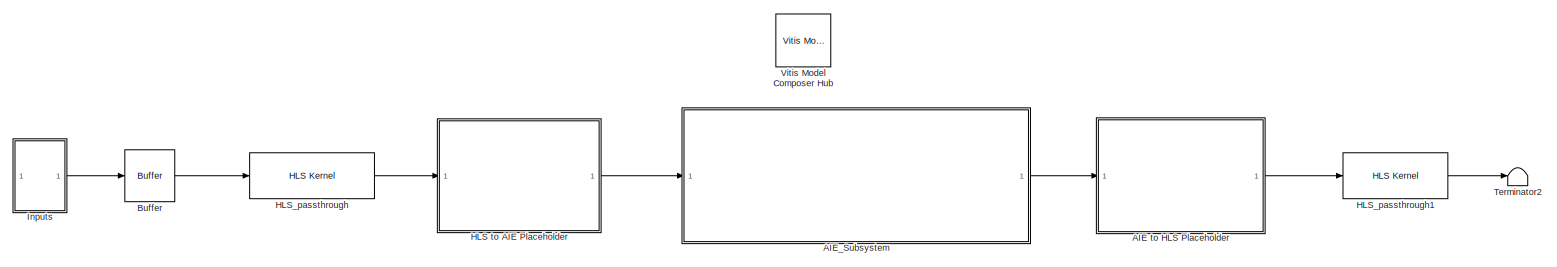
[diagram: root canvas - part 1/1, most of the canvas]
MODEL slx_2d4e64b3f8e9
KIND model
CONFIG AbsTol = auto
CONFIG EnableMultiTasking = off
CONFIG FixedStep = auto
CONFIG MaxStep = auto
CONFIG MinStep = auto
CONFIG RelTol = 1e-3
CONFIG SampleTimeConstraint = Unconstrained
CONFIG SolverName = FixedStepDiscrete
CONFIG StartTime = 0.0
CONFIG StopTime = 100*2e-9
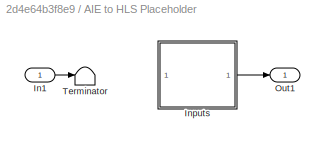
BLOCK [SubSystem] AIE to HLS Placeholder
BLOCK [Inport] AIE to HLS Placeholder/In1
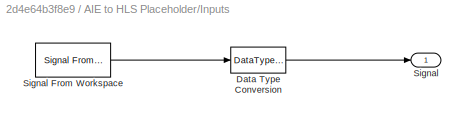
BLOCK [SubSystem] AIE to HLS Placeholder/Inputs
BLOCK [DataTypeConversion] AIE to HLS Placeholder/Inputs/Data Type Conversion
  OutDataTypeStr = uint64
  RndMeth = Floor
  SaturateOnIntegerOverflow = off
BLOCK [Outport] AIE to HLS Placeholder/Inputs/Signal
BLOCK [Reference] AIE to HLS Placeholder/Inputs/Signal From Workspace  REF=dspsrcs4/Signal From
Workspace
  SourceBlock = dspsrcs4/Signal From\nWorkspace
  SourceType = Signal From Workspace
BLOCK [Outport] AIE to HLS Placeholder/Out1
BLOCK [Terminator] AIE to HLS Placeholder/Terminator
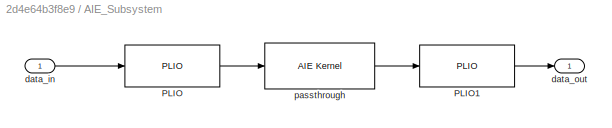
BLOCK [SubSystem] AIE_Subsystem
BLOCK [Reference] AIE_Subsystem/PLIO  REF=aieBasic/PLIO
  SourceBlock = aieBasic/PLIO
  SourceType = PLIO
BLOCK [Reference] AIE_Subsystem/PLIO1  REF=aieBasic/PLIO
  SourceBlock = aieBasic/PLIO
  SourceType = PLIO
BLOCK [Inport] AIE_Subsystem/data_in
BLOCK [Outport] AIE_Subsystem/data_out
BLOCK [Reference] AIE_Subsystem/passthrough  REF=aieBasic/AIE Kernel
  SourceBlock = aieBasic/AIE Kernel
  SourceType = AIE Kernel Function
BLOCK [Buffer] Buffer
  N = 8
  OutputFrames = off
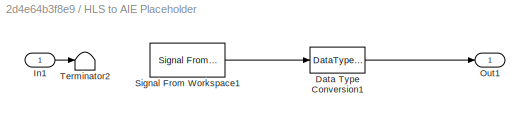
BLOCK [SubSystem] HLS to AIE Placeholder
BLOCK [DataTypeConversion] HLS to AIE Placeholder/Data Type Conversion1
  OutDataTypeStr = int16
  RndMeth = Floor
  SaturateOnIntegerOverflow = off
BLOCK [Inport] HLS to AIE Placeholder/In1
BLOCK [Outport] HLS to AIE Placeholder/Out1
BLOCK [Reference] HLS to AIE Placeholder/Signal From Workspace1  REF=dspsrcs4/Signal From
Workspace
  SourceBlock = dspsrcs4/Signal From\nWorkspace
  SourceType = Signal From Workspace
BLOCK [Terminator] HLS to AIE Placeholder/Terminator2
BLOCK [Reference] HLS_passthrough  REF=hlsBasic/HLS Kernel
  SourceBlock = hlsBasic/HLS Kernel
  SourceType = HLS Kernel Function
BLOCK [Reference] HLS_passthrough1  REF=hlsBasic/HLS Kernel
  SourceBlock = hlsBasic/HLS Kernel
  SourceType = HLS Kernel Function
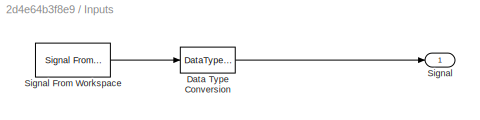
BLOCK [SubSystem] Inputs
BLOCK [DataTypeConversion] Inputs/Data Type Conversion
  OutDataTypeStr = uint64
  RndMeth = Floor
  SaturateOnIntegerOverflow = off
BLOCK [Outport] Inputs/Signal
BLOCK [Reference] Inputs/Signal From Workspace  REF=dspsrcs4/Signal From
Workspace
  SourceBlock = dspsrcs4/Signal From\nWorkspace
  SourceType = Signal From Workspace
BLOCK [Terminator] Terminator2
BLOCK [Reference] Vitis Model Composer Hub  REF=vmcUtilities/Vitis Model Composer Hub
  SourceBlock = vmcUtilities/Vitis Model Composer Hub
  SourceType = VMC Hub
  Tag = genX
  UserDataPersistent = on
LINE AIE to HLS Placeholder/In1:1 -> AIE to HLS Placeholder/Terminator:1
LINE AIE to HLS Placeholder/Inputs/Data Type Conversion:1 -> AIE to HLS Placeholder/Inputs/Signal:1
LINE AIE to HLS Placeholder/Inputs/Signal From Workspace:1 -> AIE to HLS Placeholder/Inputs/Data Type Conversion:1
LINE AIE to HLS Placeholder/Inputs:1 -> AIE to HLS Placeholder/Out1:1
LINE AIE to HLS Placeholder:1 -> HLS_passthrough1:1
LINE AIE_Subsystem/PLIO1:1 -> AIE_Subsystem/data_out:1
LINE AIE_Subsystem/PLIO:1 -> AIE_Subsystem/passthrough:1
LINE AIE_Subsystem/data_in:1 -> AIE_Subsystem/PLIO:1
LINE AIE_Subsystem/passthrough:1 -> AIE_Subsystem/PLIO1:1
LINE AIE_Subsystem:1 -> AIE to HLS Placeholder:1
LINE Buffer:1 -> HLS_passthrough:1
LINE HLS to AIE Placeholder/Data Type Conversion1:1 -> HLS to AIE Placeholder/Out1:1
LINE HLS to AIE Placeholder/In1:1 -> HLS to AIE Placeholder/Terminator2:1
LINE HLS to AIE Placeholder/Signal From Workspace1:1 -> HLS to AIE Placeholder/Data Type Conversion1:1
LINE HLS to AIE Placeholder:1 -> AIE_Subsystem:1
LINE HLS_passthrough1:1 -> Terminator2:1
LINE HLS_passthrough:1 -> HLS to AIE Placeholder:1
LINE Inputs/Data Type Conversion:1 -> Inputs/Signal:1
LINE Inputs/Signal From Workspace:1 -> Inputs/Data Type Conversion:1
LINE Inputs:1 -> Buffer:1
